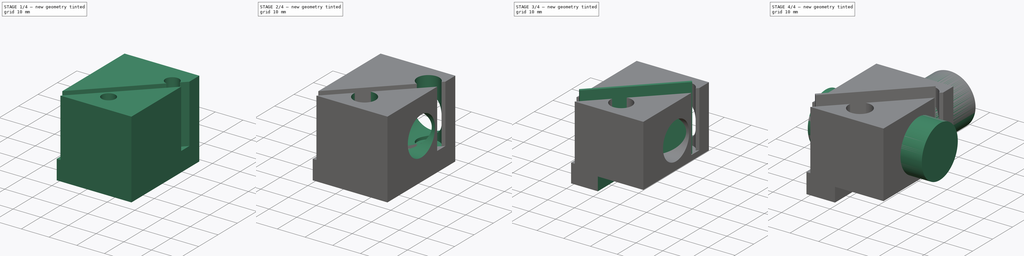
[diagram: build sequence overview — one tinted view per stage of 4, left to right]
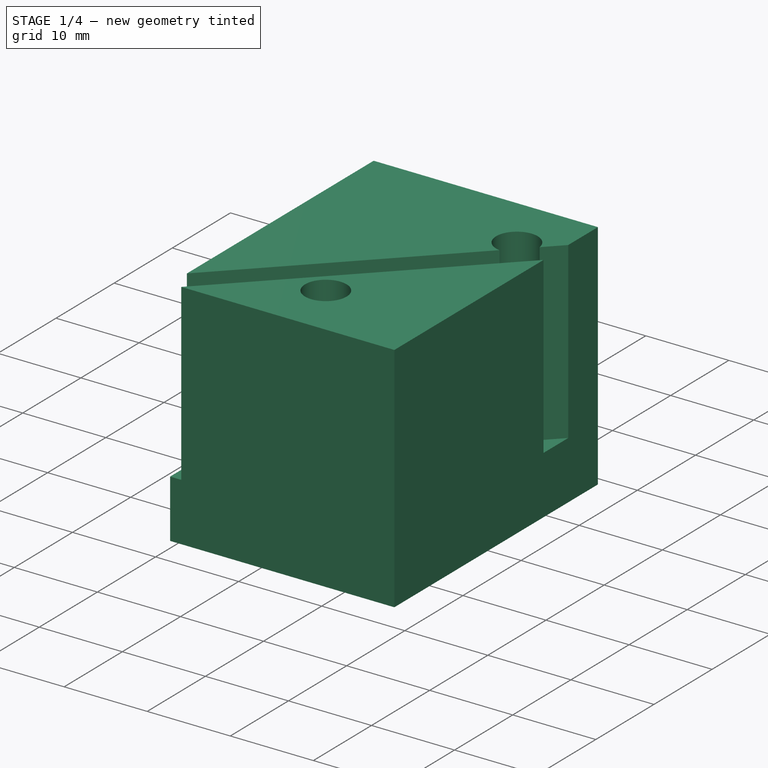
[diagram: stage 1 of 4 — iso view after this stage's code; geometry added in this stage tinted green]
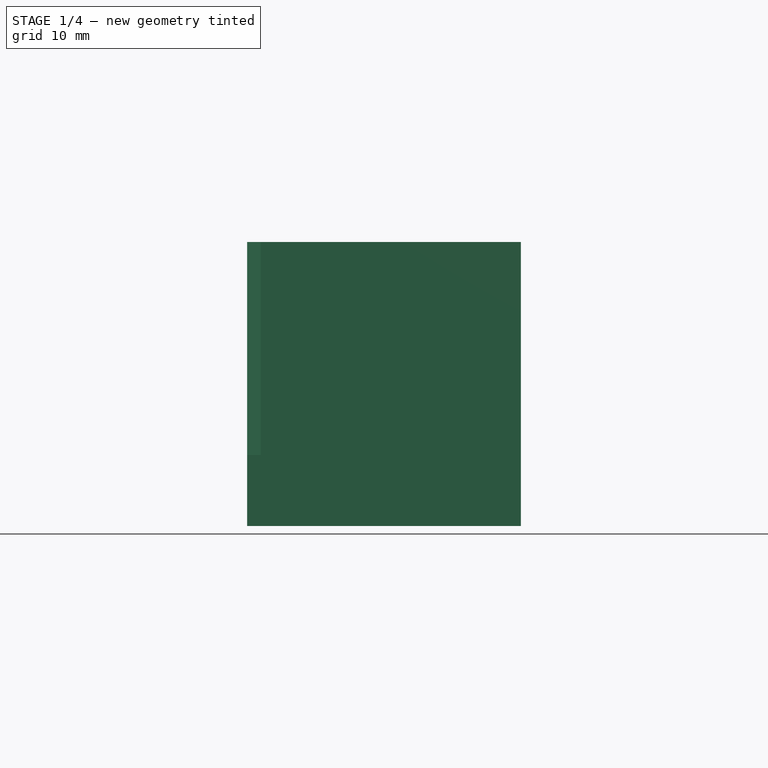
[diagram: stage 1 of 4 — front view after this stage's code; geometry added in this stage tinted green]
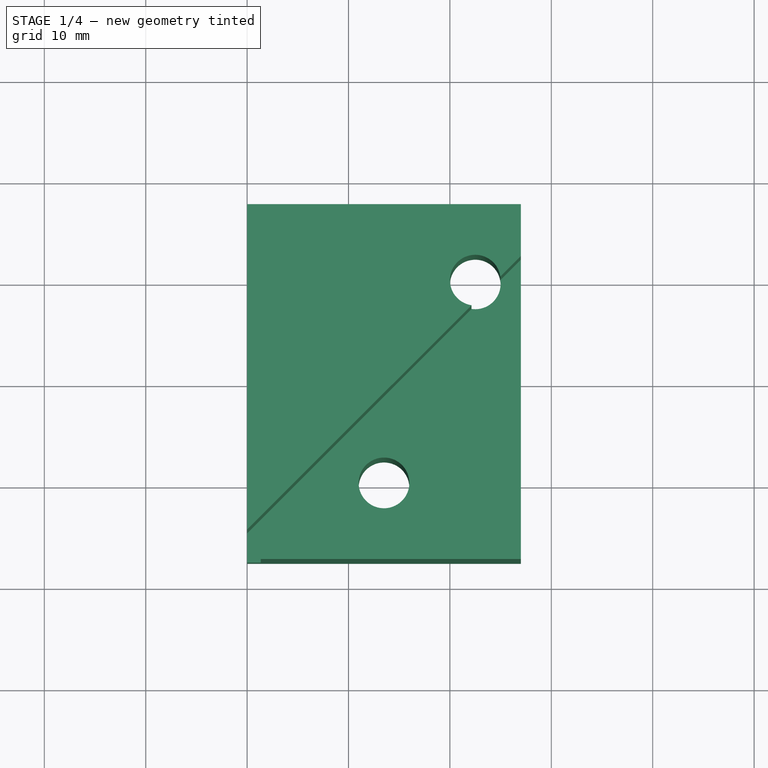
[diagram: stage 1 of 4 — top view after this stage's code; geometry added in this stage tinted green]
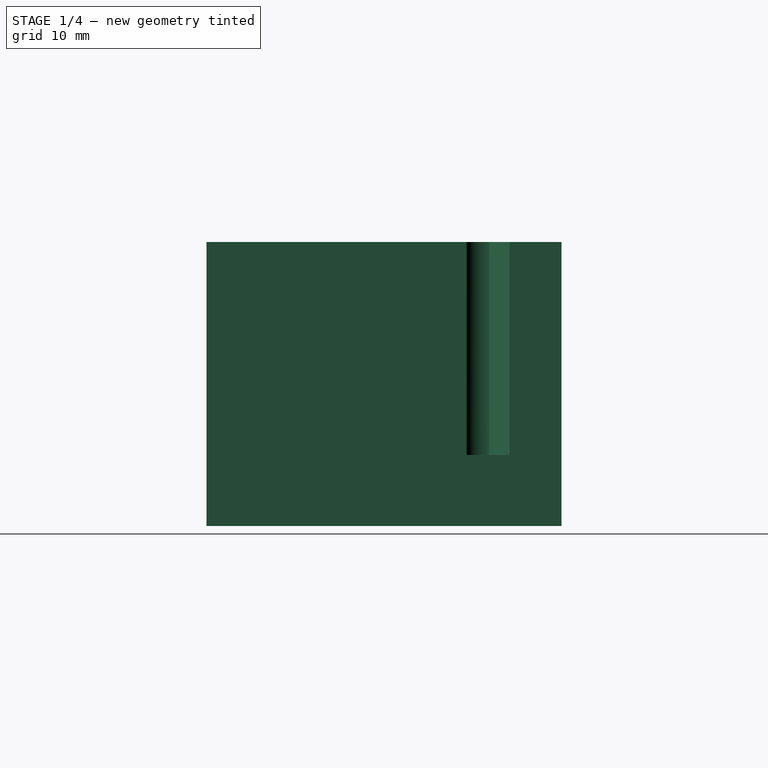
[diagram: stage 1 of 4 — right view after this stage's code; geometry added in this stage tinted green]
FCSTD DOCUMENT  (FreeCAD 0.17R13528 (Git))
Label: DM Holder For Miniscanner2
License: All rights reserved
LicenseURL: http://en.wikipedia.org/wiki/All_rights_reserved
objects: Drawing::FeatureViewPython×27, Sketcher::SketchObject×5, PartDesign::Pocket×4, Drawing::FeatureViewPart×4, Part::Box×2, PartDesign::ShapeBinder×2, Part::Cylinder×2, PartDesign::Pad×1, PartDesign::Body×1, Part::Cut×1, Drawing::FeaturePage×1
note: 23 computed .brp shape members not serialized (recipe doc carries the construction recipe); baked Part::Feature solids carry a one-line shape summary decoded from their .brp

FEATURE [Sketcher::SketchObject] Sketch
  MapMode = 5
  Support = -> [XY_Plane]
  sketch-geometry (6):
    g0: LineSegment StartX=-10 StartY=17.5 StartZ=0 EndX=17 EndY=17.5 EndZ=0
    g1: LineSegment StartX=17 StartY=17.5 StartZ=0 EndX=17 EndY=-17.5 EndZ=0
    g2: LineSegment StartX=17 StartY=-17.5 StartZ=0 EndX=-10 EndY=-17.5 EndZ=0
    g3: LineSegment StartX=-10 StartY=-17.5 StartZ=0 EndX=-10 EndY=17.5 EndZ=0
    g4: Circle CenterX=3.5 CenterY=-10 CenterZ=0 NormalX=0 NormalY=0 NormalZ=1 AngleXU=0 Radius=2.5
    g5: Circle CenterX=12.5 CenterY=10 CenterZ=0 NormalX=0 NormalY=0 NormalZ=1 AngleXU=0 Radius=2.5
  constraints (18):
    c: Coincident(g0,g1)
    c: Coincident(g1,g2)
    c: Coincident(g2,g3)
    c: Coincident(g3,g0)
    c: Horizontal(g0)
    c: Horizontal(g2)
    c: Vertical(g1)
    c: Vertical(g3)
    c: DistanceX(g0,g0) = 27
    c: DistanceY(g3,g3) = 35
    c: DistanceX(g2,g-1) = 10
    c: Symmetric(g0,g2,g-1)
    c: Radius(g4) = 2.5
    c: DistanceX(g-1,g4) = 3.5
    c: DistanceY(g2,g4) = 7.5
    c: Radius(g5) = 2.5
    c: DistanceY(g5,g0) = 7.5
    c: DistanceX(g5,g0) = 4.5
FEATURE [PartDesign::Pad] Pad
  Length = 28
  Length2 = 100
  Profile = -> Sketch
  Type = 0
FEATURE [PartDesign::ShapeBinder] CopyCut001
  Placement = pos=(0,0,28) rot=(0,0,1;0rad)
FEATURE [Sketcher::SketchObject] Sketch001
  ExternalGeometry = -> [CopyCut001]
  MapMode = 5
  Placement = pos=(0,0,28) rot=(0,0,1;0rad)
  Support = -> [CopyCut001]
  sketch-geometry (5):
    g0: LineSegment StartX=17 StartY=12.3926 StartZ=0 EndX=-10 EndY=-14.6074 EndZ=0
    g1: LineSegment StartX=17 StartY=8.15 StartZ=0 EndX=-10 EndY=-18.85 EndZ=0
    g2: LineSegment [constr] StartX=17 StartY=8.15 StartZ=0 EndX=14.8787 EndY=10.2713 EndZ=0
    g3: LineSegment StartX=-10 StartY=-14.6074 StartZ=0 EndX=-10 EndY=-18.85 EndZ=0
    g4: LineSegment StartX=17 StartY=12.3926 StartZ=0 EndX=17 EndY=8.15 EndZ=0
  constraints (16):
    c: PointOnObject(g0,g-3)
    c: Angle(g0,g-3) = 0.785398
    c: PointOnObject(g1,g-3)
    c: Parallel(g0,g1)
    c: Coincident(g2,g1)
    c: PointOnObject(g2,g0)
    c: Perpendicular(g0,g2)
    c: Distance(g2) = 3
    c: PointOnObject(g0,g-4)
    c: PointOnObject(g1,g-4)
    c: Coincident(g3,g0)
    c: Vertical(g3)
    c: Coincident(g3,g1)
    c: Coincident(g4,g0)
    c: Coincident(g4,g1)
    c: DistanceY(g1,g-3) = 9.35
FEATURE [PartDesign::Pocket] Pocket
  BaseFeature = -> Pad
  Length = 21
  Length2 = 100
  Profile = -> Sketch001
  Type = 0
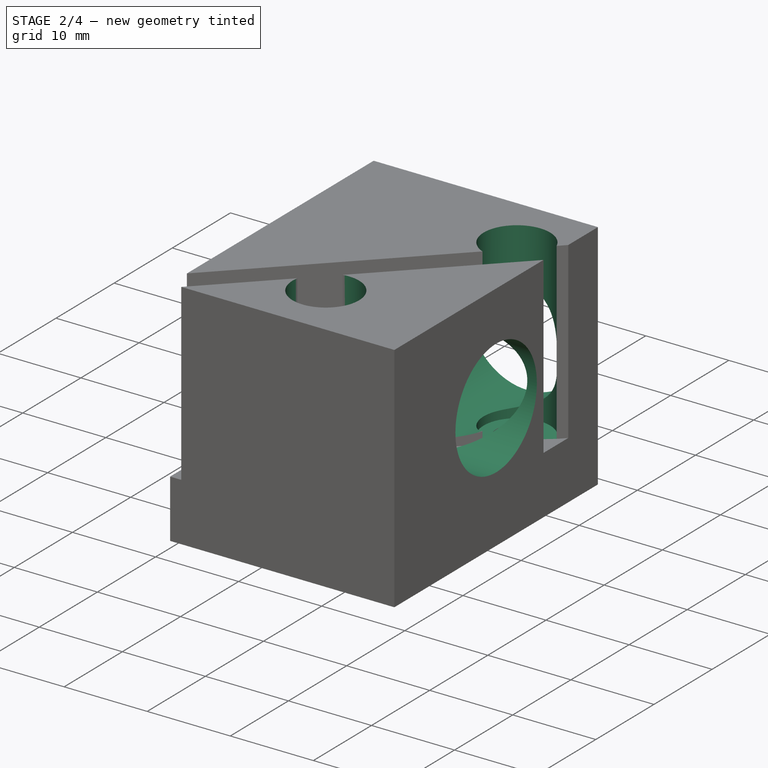
[diagram: stage 2 of 4 — iso view after this stage's code; geometry added in this stage tinted green]
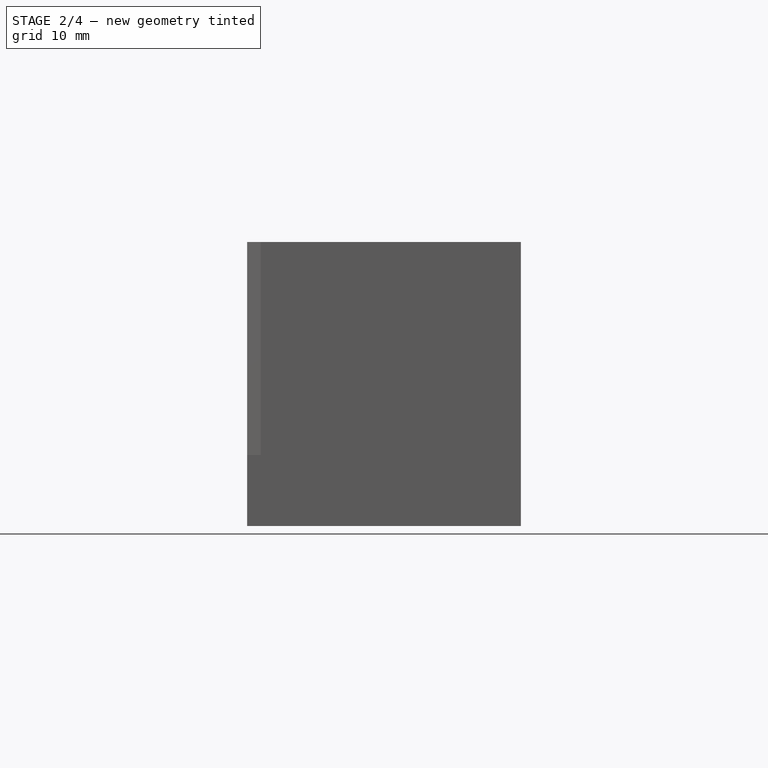
[diagram: stage 2 of 4 — front view after this stage's code; geometry added in this stage tinted green]
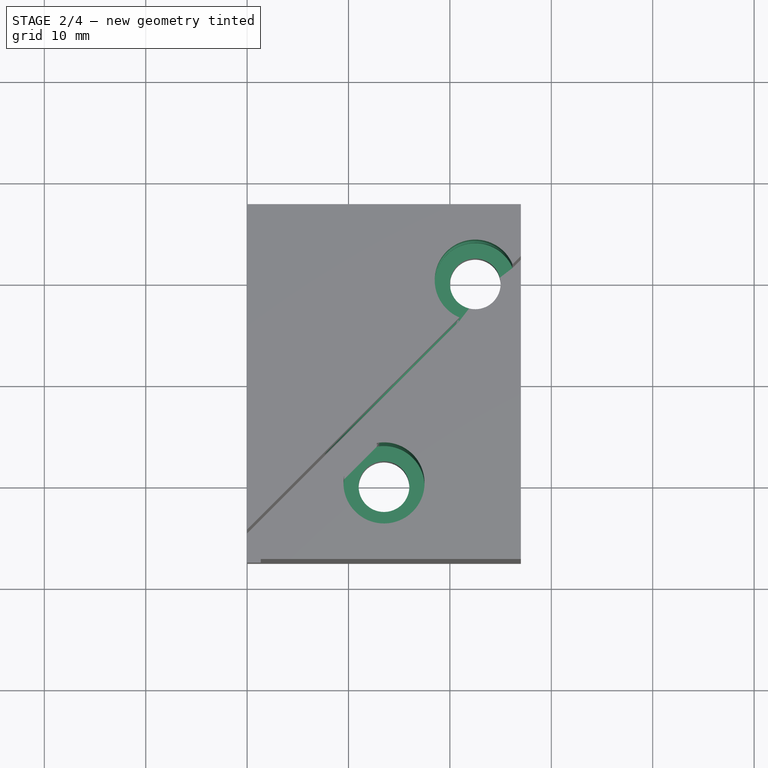
[diagram: stage 2 of 4 — top view after this stage's code; geometry added in this stage tinted green]
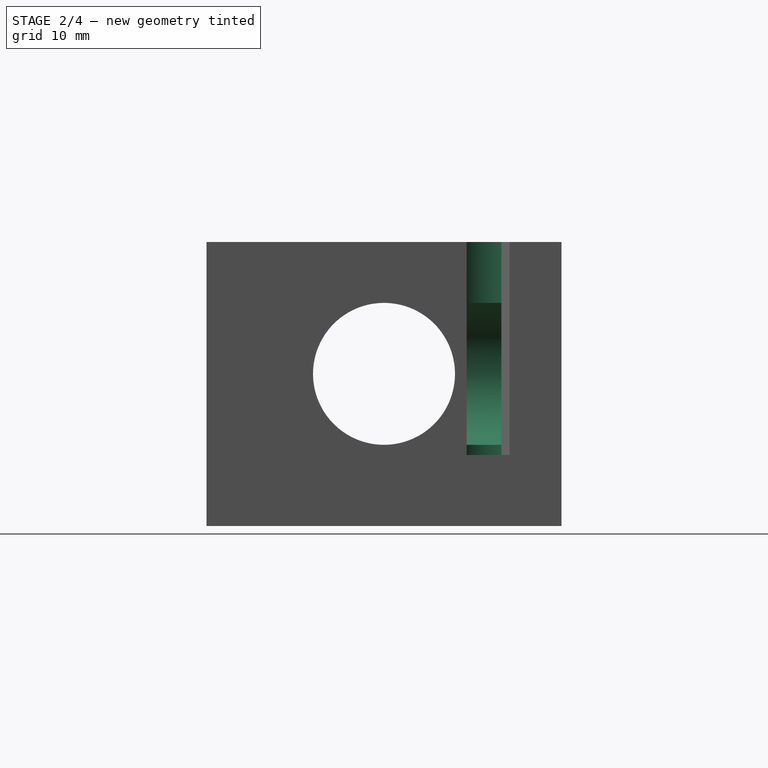
[diagram: stage 2 of 4 — right view after this stage's code; geometry added in this stage tinted green]
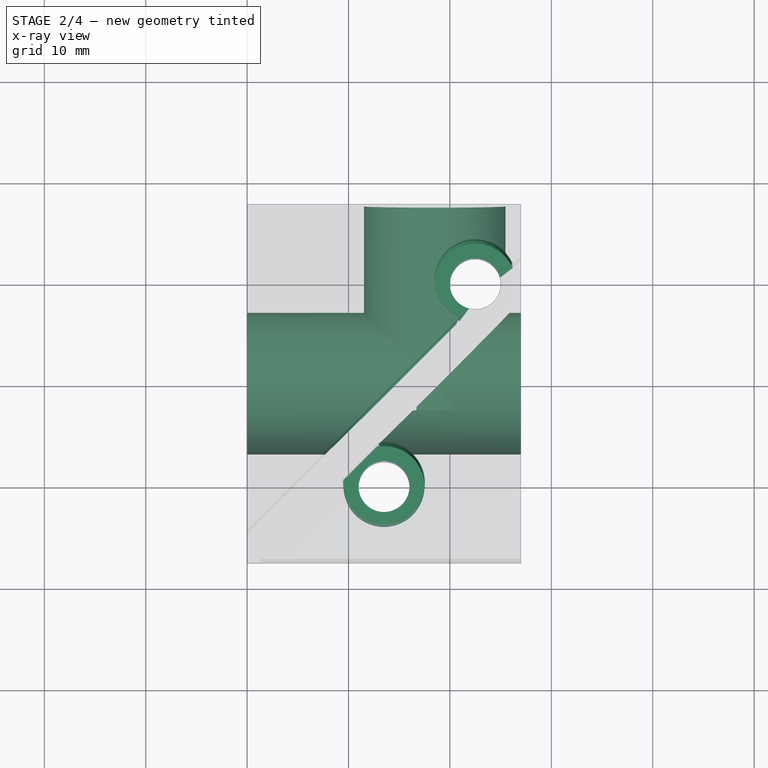
[diagram: stage 2 of 4 — x-ray composite at the top view; earlier geometry ghosted, this stage's added geometry solid]
FEATURE [Sketcher::SketchObject] Sketch002
  MapMode = 5
  Placement = pos=(0,17.5,0) rot=(0,0.707107,0.707107;3.14159rad)
  Support = -> [Pocket]
  sketch-geometry (1):
    g0: Circle CenterX=-8.5 CenterY=15 CenterZ=0 NormalX=0 NormalY=0 NormalZ=1 AngleXU=0 Radius=7
  constraints (3):
    c: DistanceY(g-1,g0) = 15
    c: Radius(g0) = 7
    c: DistanceX(g-1,g0) = -8.5
FEATURE [PartDesign::Pocket] Pocket001
  BaseFeature = -> Pocket
  Length = 20
  Length2 = 100
  Profile = -> Sketch002
  Type = 0
FEATURE [Sketcher::SketchObject] Sketch003
  MapMode = 5
  Placement = pos=(17,0,0) rot=(0.57735,0.57735,0.57735;2.0944rad)
  Support = -> [Pocket001]
  sketch-geometry (1):
    g0: Circle CenterX=0 CenterY=15 CenterZ=0 NormalX=0 NormalY=0 NormalZ=1 AngleXU=0 Radius=7
  constraints (3):
    c: PointOnObject(g0,g-2)
    c: Radius(g0) = 7
    c: DistanceY(g-1,g0) = 15
FEATURE [PartDesign::Pocket] Pocket002
  BaseFeature = -> Pocket001
  Length = 5
  Length2 = 100
  Profile = -> Sketch003
  Type = 1
FEATURE [PartDesign::ShapeBinder] ShapeBinder
FEATURE [Sketcher::SketchObject] Sketch004
  ExternalGeometry = -> [ShapeBinder]
  MapMode = 45
  Placement = pos=(8,1e-12,28) rot=(0,0,-1;0.422854rad)
  Support = -> [Sketch004]
  sketch-geometry (2):
    g0: Circle CenterX=0 CenterY=10.9659 CenterZ=0 NormalX=0 NormalY=0 NormalZ=1 AngleXU=0 Radius=4
    g1: Circle CenterX=0 CenterY=-10.9659 CenterZ=0 NormalX=0 NormalY=0 NormalZ=1 AngleXU=0 Radius=4
  constraints (4):
    c: Coincident(g0,g-3)
    c: Coincident(g1,g-4)
    c: Radius(g0) = 4
    c: Radius(g1) = 4
FEATURE [PartDesign::Pocket] Pocket003
  BaseFeature = -> Pocket002
  Length = 21
  Length2 = 100
  Profile = -> Sketch004
  Type = 0
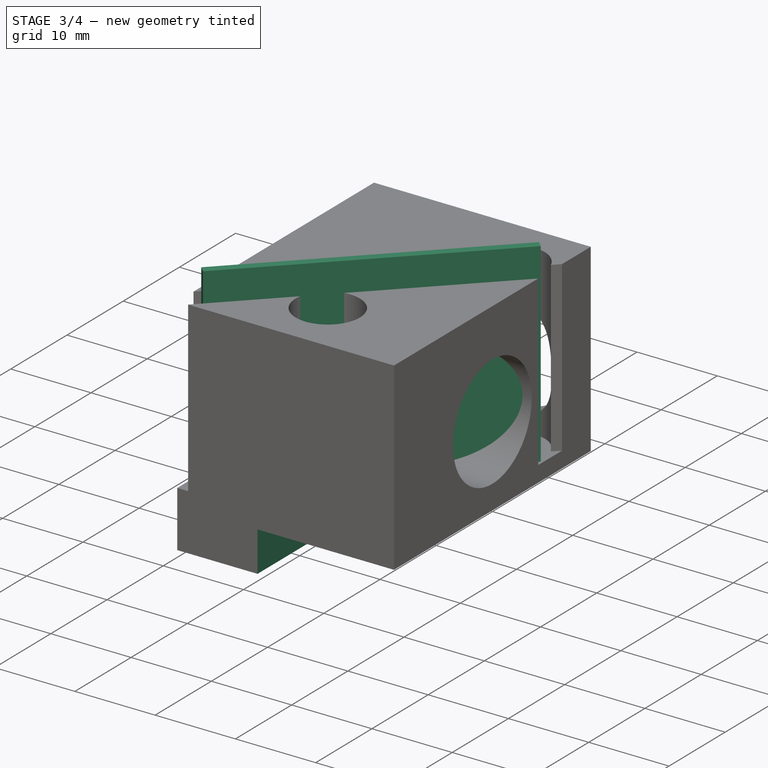
[diagram: stage 3 of 4 — iso view after this stage's code; geometry added in this stage tinted green]
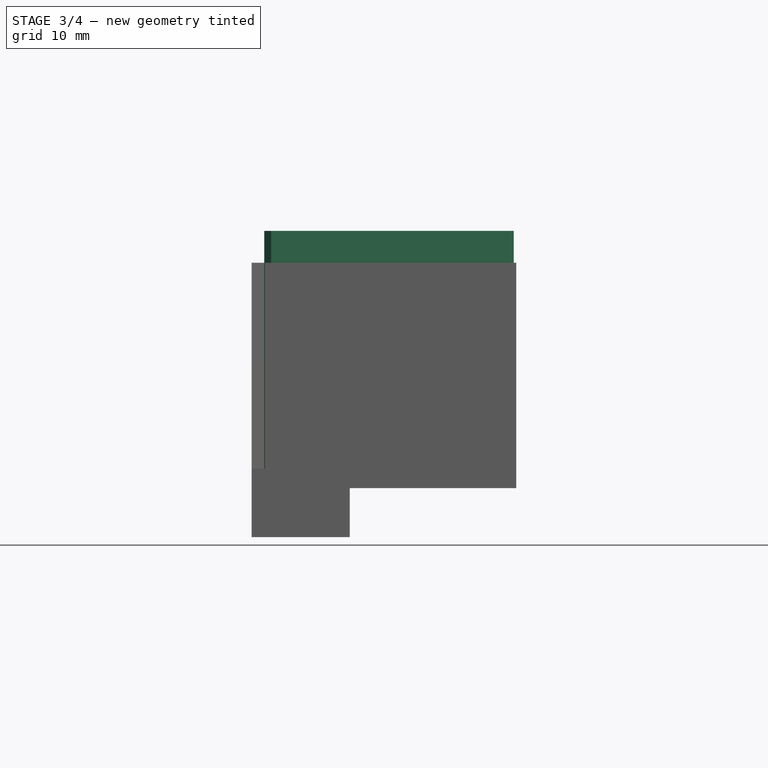
[diagram: stage 3 of 4 — front view after this stage's code; geometry added in this stage tinted green]
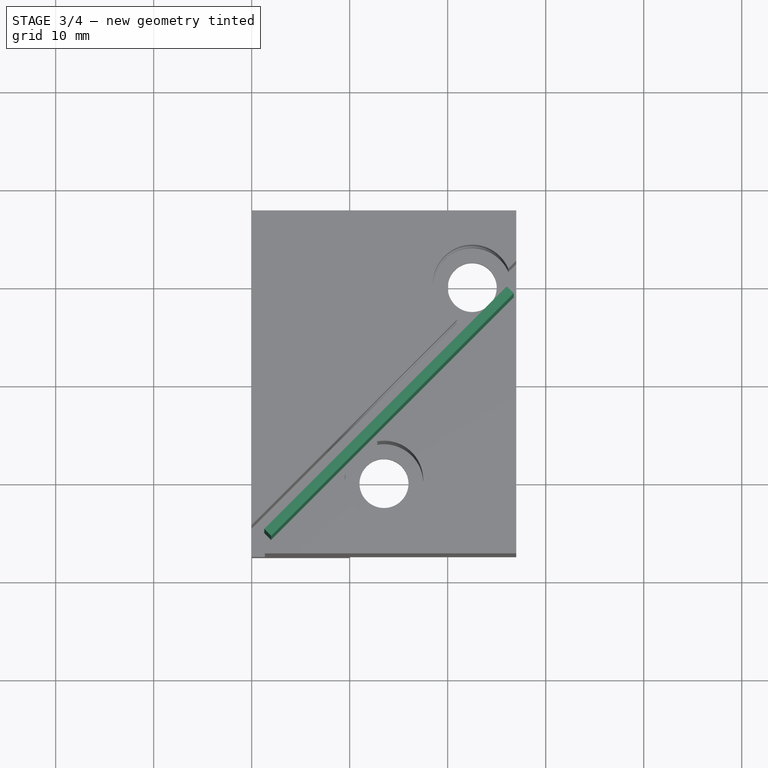
[diagram: stage 3 of 4 — top view after this stage's code; geometry added in this stage tinted green]
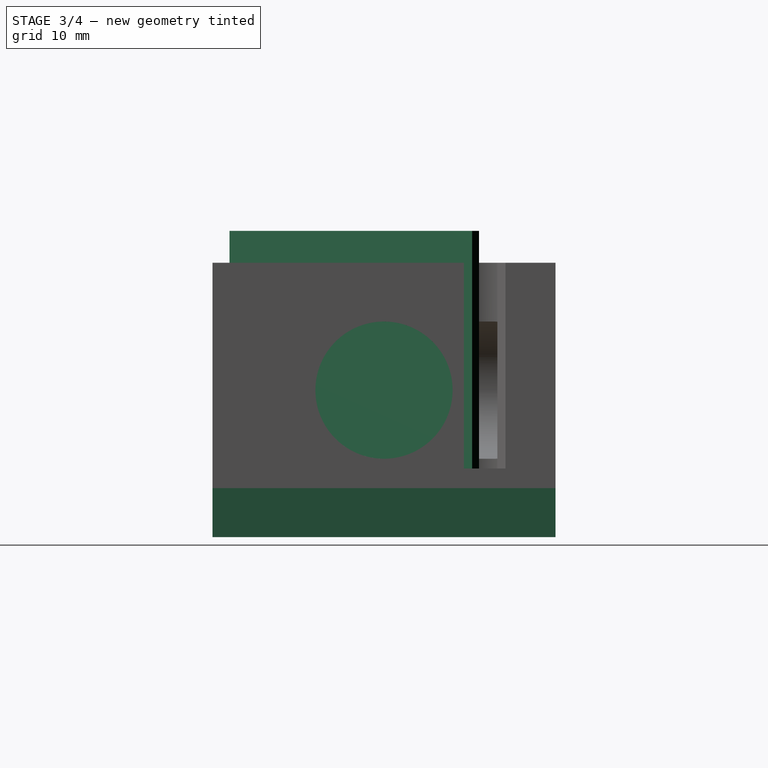
[diagram: stage 3 of 4 — right view after this stage's code; geometry added in this stage tinted green]
FEATURE [Part::Box] Box  label="base"
  AttacherType = Attacher::AttachEngine3D
  Height = 6
  Length = 17
  Placement = pos=(0,-17.5,-1) rot=(0,0,1;0rad)
  Width = 35
FEATURE [Part::Box] Box001  label="DM"
  AttacherType = Attacher::AttachEngine3D
  Height = 25
  Length = 35
  Placement = pos=(-8.01256,-15.7626,6.25) rot=(0,0,1;0.785398rad)
  Width = 1
FEATURE [PartDesign::Body] Body
  Group = -> [Sketch,Pad,CopyCut001,Sketch001,Pocket,Sketch002,Pocket001,Sketch003,Pocket002,ShapeBinder,Sketch004,Pocket003]
  Origin = -> Origin
  Tip = -> Pocket003
FEATURE [Part::Cut] Cut
  Base = -> Pocket003
  Tool = -> Box
FEATURE [Drawing::FeatureViewPart] Ortho  label="Ortho_0_0"
  Direction = (1,0,0)
  HiddenWidth = 0.15
  LineWidth = 0.35
  Rotation = -90
  Scale = 1.5
  ShowHiddenLines = false
  ShowSmoothLines = false
  Source = -> Cut
  Tolerance = 0.05
  ViewResult = <g id="Ortho_0_0"\n   transform="rotate(-90,97.5833,132.833) translate(97.5833,132.833) scale(1.5,1.5)"\n  >\n<g   fill="none"\n   stroke="rgb(0, 0, 0)"\n   stroke-linecap="butt"\n   stroke-linejoin="miter"\n   stroke-width="0.233333"\n   transform="scale(1,-1)"\n  >\n<path id= "1" d=" M 8 -9.99999 L 8 -10 " />\n<path id= "2" d=" M 8 -10 L 8 -10 " />\n</g>\n<g   fill="none"\n   stroke="rgb(0, 0, 0)"\n   stroke-linecap="butt"\n   stroke-linejoin="miter"\n   stroke-width="0.233333"\n   transform="scale(1,-1)"\n  >\n<path id= "1" d=" M 0 -17.5 L 5 -17.5 " />\n<path id= "2" d=" M 5 -17.5 L 28 -17.5 " />\n<path id= "3" d=" M 0 -17.5 L 0 17.5 " />\n<path id= "4" d=" M 0 17.5 L 5 17.5 " />\n<path id= "5" d=" M 5 17.5 L 5 -17.5 " />\n<path id= "6" d=" M 5 17.5 L 28 17.5 " />\n<path id= "7" d=" M 28 -8.15 L 28 17.5 " />\n<path id= "8" d=" M 28 -8.15 L 7 -8.15 " />\n<path id= "9" d=" M 7 -12.3926 L 7 -8.15 " />\n<path id= "10" d=" M 28 -12.3926 L 7 -12.3926 " />\n<path id= "11" d=" M 28 -17.5 L 28 -12.3926 " />\n<circle cx ="15" cy ="0" r ="7" /><path d="M28,-11.5712 C28,-10.4855 28,-9.19634 28,-8.15 " /><path id= "14" d=" M 28 -12.3926 L 28 -11.5712 " />\n<path d="M8.01471,-8.15 C7.996,-8.73797 8.00111,-9.3698 8,-9.99999 " /><path d="M8,-9.99999 L8,-10 " /><path d="M8,-10 L8,-10 " /><path d="M8,-10 C8.00055,-10.5318 7.99801,-11.0642 8.00739,-11.5712 " /><path d="M21.9926,-11.5712 C22.002,-11.0642 21.9994,-10.5318 22,-10 " /><path d="M22,-10 C21.9989,-9.36977 22.004,-8.73799 21.9853,-8.15 " /><path d="M7,-10 C7,-9.65274 7,-9.3065 7,-8.98851  C7,-8.67136 7,-8.38433 7,-8.15 " /><path d="M7,-11.5712 C7,-11.2257 7,-10.8051 7,-10.3657 " /><path id= "23" d=" M 7 -11.5712 L 28 -11.5712 " />\n<path d="M18.6056,6 C18.6062,5.99879 18.4437,6.10095 18.1827,6.23461  C17.9808,6.3378 17.7191,6.4585 17.4166,6.56965  C16.7563,6.81619 15.8939,7.00331 15.0013,7  C14.1077,7.00365 13.2443,6.81643 12.5834,6.56965  C12.2809,6.4585 12.0192,6.3378 11.8173,6.23461  C11.5563,6.10094 11.3939,5.99886 11.3944,6 " /></g>\n</g>
  Visible = true
  X = 97.5833
  Y = 132.833
FEATURE [Drawing::FeatureViewPart] Ortho001  label="Ortho_0_1"
  Direction = (0,0,1)
  HiddenWidth = 0.15
  LineWidth = 0.35
  Rotation = 90
  Scale = 1.5
  ShowHiddenLines = false
  ShowSmoothLines = false
  Source = -> Cut
  Tolerance = 0.05
  ViewResult = <blob: 2014 chars omitted>
  Visible = true
  X = 97.5833
  Y = 45.1667
FEATURE [Drawing::FeatureViewPart] Ortho002  label="Ortho_1_0"
  Direction = (0,1,0)
  HiddenWidth = 0.15
  LineWidth = 0.35
  Rotation = -90
  Scale = 1.5
  ShowHiddenLines = false
  ShowSmoothLines = false
  Source = -> Cut
  Tolerance = 0.05
  ViewResult = <g id="Ortho_1_0"\n   transform="rotate(-90,210.667,132.833) translate(210.667,132.833) scale(1.5,1.5)"\n  >\n<g   fill="none"\n   stroke="rgb(0, 0, 0)"\n   stroke-linecap="butt"\n   stroke-linejoin="miter"\n   stroke-width="0.233333"\n   transform="scale(1,-1)"\n  >\n<path id= "1" d=" M 0 -10 L 0 0 " />\n<path id= "2" d=" M 0 0 L 5 0 " />\n<path id= "3" d=" M 5 0 L 5 17 " />\n<path id= "4" d=" M 5 17 L 28 17 " />\n<path id= "5" d=" M 28 -10 L 28 17 " />\n<path id= "6" d=" M 0 -10 L 28 -10 " />\n<circle cx ="15" cy ="8.5" r ="7" /><path id= "8" d=" M 18.4963 2.78571 L 19.0431 2.78571 " />\n<path d="M18.4963,2.78571 L18.7877,2.96332  L19.0701,3.15492  L19.3429,3.36005  L19.6053,3.57824  L19.8567,3.80895  L20.0966,4.05165  L20.3244,4.30575  L20.5396,4.57065  L20.7416,4.84572  L20.9299,5.13031  L21.1042,5.42374  L21.2639,5.72531  L21.4087,6.03431  L21.5383,6.35 " /><path id= "10" d=" M 21.6616 6.35 L 21.5383 6.35 " />\n<path id= "11" d=" M 8.46165 6.35 L 8.33836 6.35 " />\n<path d="M8.46165,6.35 L8.59127,6.03431  L8.73611,5.72531  L8.89584,5.42374  L9.07009,5.13031  L9.25842,4.84572  L9.4604,4.57065  L9.67555,4.30575  L9.90335,4.05165  L10.1433,3.80895  L10.3947,3.57824  L10.6571,3.36005  L10.9299,3.15492  L11.2123,2.96332  L11.5037,2.78571 " /><path id= "13" d=" M 10.9569 2.78571 L 11.5037 2.78571 " />\n<path id= "14" d=" M 8.46165 6.35 L 8.46165 11 " />\n<path d="M18.4963,2.78571 C18.5682,3.01233 18.6046,3.25043 18.6056,3.5  C18.6062,4.00718 18.4437,4.48079 18.1827,4.84976  C18.1041,4.96135 18.0171,5.06509 17.9216,5.161  C17.2345,5.84975 16.1446,6.14055 15.0013,6.14575  C13.857,6.141 12.7659,5.85025 12.0784,5.161  C11.9829,5.06509 11.8959,4.96135 11.8173,4.84976  C11.5649,4.49243 11.4045,4.03899 11.395,3.5494  C11.3906,3.28259 11.4269,3.02803 11.5037,2.78571 " /><path id= "16" d=" M 21.5383 6.35 L 21.5383 11 " />\n</g>\n</g>
  Visible = true
  X = 210.667
  Y = 132.833
FEATURE [Drawing::FeatureViewPart] Ortho003  label="Ortho_1_1"
  Direction = (0.57735,0.57735,0.57735)
  HiddenWidth = 0.15
  LineWidth = 0.35
  Rotation = 120
  Scale = 1.5
  ShowHiddenLines = false
  ShowSmoothLines = false
  Source = -> Cut
  Tolerance = 0.05
  ViewResult = <blob: 3505 chars omitted>
  Visible = true
  X = 209.129
  Y = 65.4198
FEATURE [Drawing::FeatureViewPython] dim001  # drawing view (typed FeaturePython)
  Rotation = 0
  ViewResult = <g> \n  <line x1="125.833300" y1="30.166700" x2="151.496094" y2="30.166700" style="stroke:rgb(0,0,255);stroke-width:0.50" />\n<line x1="125.833300" y1="70.666700" x2="151.496094" y2="70.666700" style="stroke:rgb(0,0,255);stroke-width:0.50" />\n<line x1="150.496094" y1="30.166700" x2="150.496094" y2="70.666700" style="stroke:rgb(0,0,255);stroke-width:0.50" /> \n  <polygon points="150.496094,70.666700 151.496094,67.666700 150.496094,66.666700 149.496094,67.666700" style="fill:rgb(0,0,255);stroke:rgb(0,0,255);stroke-width:0" /><polygon points="150.496094,30.166700 149.496094,33.166700 150.496094,34.166700 151.496094,33.166700" style="fill:rgb(0,0,255);stroke:rgb(0,0,255);stroke-width:0" /> \n  <text x="148.496094" y="50.416700" font-family="inherit" font-size="3.6" fill="rgb(0,0,255)" text-anchor="middle" transform="rotate(-90.000000 148.496094,50.416700)" >27</text> </g>
  Visible = true
  X = 0
  Y = 0
  arrowL1 = 3
  arrowL2 = 1
  arrowW = 2
  arrow_scheme = 0
  autoPlaceOffset = 2
  autoPlaceText = true
  click1_x = 150.496
  click1_y = 72.0009
  click2_x = 150.496
  click2_y = 72.0009
  comma_decimal_place = false
  dimension_line_overshoot = 1
  gap_datum_points = 2
  halfDimension_linear = false
  lineColor = rgb(0,0,255)
  strokeWidth = 0.5
  textFormat_linear = %(value)3.3f
  textRenderer_color = rgb(0,0,255)
  textRenderer_family = inherit
  textRenderer_size = 3.6
  unit_custom_scale = 1
  unit_scheme = 0
FEATURE [Drawing::FeatureViewPython] dim002  # drawing view (typed FeaturePython)
  Rotation = 0
  ViewResult = <g> \n  <line x1="125.833300" y1="90.833000" x2="151.496094" y2="90.833000" style="stroke:rgb(0,0,255);stroke-width:0.50" />\n<line x1="125.833300" y1="125.333000" x2="151.496094" y2="125.333000" style="stroke:rgb(0,0,255);stroke-width:0.50" />\n<line x1="150.496094" y1="90.833000" x2="150.496094" y2="125.333000" style="stroke:rgb(0,0,255);stroke-width:0.50" /> \n  <polygon points="150.496094,125.333000 151.496094,122.333000 150.496094,121.333000 149.496094,122.333000" style="fill:rgb(0,0,255);stroke:rgb(0,0,255);stroke-width:0" /><polygon points="150.496094,90.833000 149.496094,93.833000 150.496094,94.833000 151.496094,93.833000" style="fill:rgb(0,0,255);stroke:rgb(0,0,255);stroke-width:0" /> \n  <text x="148.496094" y="108.083000" font-family="inherit" font-size="3.6" fill="rgb(0,0,255)" text-anchor="middle" transform="rotate(-90.000000 148.496094,108.083000)" >23</text> </g>
  Visible = true
  X = 0
  Y = 0
  arrowL1 = 3
  arrowL2 = 1
  arrowW = 2
  arrow_scheme = 0
  autoPlaceOffset = 2
  autoPlaceText = true
  click1_x = 150.496
  click1_y = 123.955
  click2_x = 150.496
  click2_y = 123.955
  comma_decimal_place = false
  dimension_line_overshoot = 1
  gap_datum_points = 2
  halfDimension_linear = false
  lineColor = rgb(0,0,255)
  strokeWidth = 0.5
  textFormat_linear = %(value)3.3f
  textRenderer_color = rgb(0,0,255)
  textRenderer_family = inherit
  textRenderer_size = 3.6
  unit_custom_scale = 1
  unit_scheme = 0
FEATURE [Drawing::FeatureViewPython] dim003  # drawing view (typed FeaturePython)
  Rotation = 0
  ViewResult = <g> \n  <line x1="125.833300" y1="125.333000" x2="151.496094" y2="125.333000" style="stroke:rgb(0,0,255);stroke-width:0.50" />\n<line x1="125.833300" y1="132.833000" x2="151.496094" y2="132.833000" style="stroke:rgb(0,0,255);stroke-width:0.50" />\n<line x1="150.496094" y1="125.333000" x2="150.496094" y2="132.833000" style="stroke:rgb(0,0,255);stroke-width:0.50" /> \n  <polygon points="150.496094,132.833000 149.496094,135.833000 150.496094,136.833000 151.496094,135.833000" style="fill:rgb(0,0,255);stroke:rgb(0,0,255);stroke-width:0" /><polygon points="150.496094,125.333000 151.496094,122.333000 150.496094,121.333000 149.496094,122.333000" style="fill:rgb(0,0,255);stroke:rgb(0,0,255);stroke-width:0" /> \n  <text x="148.496094" y="129.083000" font-family="inherit" font-size="3.6" fill="rgb(0,0,255)" text-anchor="middle" transform="rotate(-90.000000 148.496094,129.083000)" >5</text> </g>
  Visible = true
  X = 0
  Y = 0
  arrowL1 = 3
  arrowL2 = 1
  arrowW = 2
  arrow_scheme = 0
  autoPlaceOffset = 2
  autoPlaceText = true
  click1_x = 150.496
  click1_y = 132.425
  click2_x = 150.496
  click2_y = 132.425
  comma_decimal_place = false
  dimension_line_overshoot = 1
  gap_datum_points = 2
  halfDimension_linear = false
  lineColor = rgb(0,0,255)
  strokeWidth = 0.5
  textFormat_linear = %(value)3.3f
  textRenderer_color = rgb(0,0,255)
  textRenderer_family = inherit
  textRenderer_size = 3.6
  unit_custom_scale = 1
  unit_scheme = 0
FEATURE [Drawing::FeatureViewPython] dim004  # drawing view (typed FeaturePython)
  Rotation = 0
  ViewResult = <g> \n  <line x1="71.333300" y1="134.833000" x2="71.333300" y2="144.719534" style="stroke:rgb(0,0,255);stroke-width:0.50" />\n<line x1="123.833300" y1="134.833000" x2="123.833300" y2="144.719534" style="stroke:rgb(0,0,255);stroke-width:0.50" />\n<line x1="71.333300" y1="143.719534" x2="123.833300" y2="143.719534" style="stroke:rgb(0,0,255);stroke-width:0.50" /> \n  <polygon points="123.833300,143.719534 120.833300,142.719534 119.833300,143.719534 120.833300,144.719534" style="fill:rgb(0,0,255);stroke:rgb(0,0,255);stroke-width:0" /><polygon points="71.333300,143.719534 74.333300,144.719534 75.333300,143.719534 74.333300,142.719534" style="fill:rgb(0,0,255);stroke:rgb(0,0,255);stroke-width:0" /> \n  <text x="97.583300" y="141.719534" font-family="inherit" font-size="3.6" fill="rgb(0,0,255)" text-anchor="middle" transform="rotate(0.000000 97.583300,141.719534)" >35</text> </g>
  Visible = true
  X = 0
  Y = 0
  arrowL1 = 3
  arrowL2 = 1
  arrowW = 2
  arrow_scheme = 0
  autoPlaceOffset = 2
  autoPlaceText = true
  click1_x = 124.519
  click1_y = 143.72
  click2_x = 124.519
  click2_y = 143.72
  comma_decimal_place = false
  dimension_line_overshoot = 1
  gap_datum_points = 2
  halfDimension_linear = false
  lineColor = rgb(0,0,255)
  strokeWidth = 0.5
  textFormat_linear = %(value)3.3f
  textRenderer_color = rgb(0,0,255)
  textRenderer_family = inherit
  textRenderer_size = 3.6
  unit_custom_scale = 1
  unit_scheme = 0
FEATURE [Drawing::FeatureViewPython] dim005  # drawing view (typed FeaturePython)
  Rotation = 0
  ViewResult = <g> \n  <line x1="82.583305" y1="52.416702" x2="82.583305" y2="80.342218" style="stroke:rgb(0,0,255);stroke-width:0.50" />\n<line x1="71.333300" y1="72.666700" x2="71.333300" y2="80.342218" style="stroke:rgb(0,0,255);stroke-width:0.50" />\n<line x1="82.583305" y1="79.342218" x2="71.333300" y2="79.342218" style="stroke:rgb(0,0,255);stroke-width:0.50" /> \n  <polygon points="71.333300,79.342218 74.333300,80.342218 75.333300,79.342218 74.333300,78.342218" style="fill:rgb(0,0,255);stroke:rgb(0,0,255);stroke-width:0" /><polygon points="82.583305,79.342218 79.583305,78.342218 78.583305,79.342218 79.583305,80.342218" style="fill:rgb(0,0,255);stroke:rgb(0,0,255);stroke-width:0" /> \n  <text x="76.958302" y="77.342218" font-family="inherit" font-size="3.6" fill="rgb(0,0,255)" text-anchor="middle" transform="rotate(0.000000 76.958302,77.342218)" >7.5</text> </g>
  Visible = true
  X = 0
  Y = 0
  arrowL1 = 3
  arrowL2 = 1
  arrowW = 2
  arrow_scheme = 0
  autoPlaceOffset = 2
  autoPlaceText = true
  click1_x = 80.754
  click1_y = 79.3422
  click2_x = 80.754
  click2_y = 79.3422
  comma_decimal_place = false
  dimension_line_overshoot = 1
  gap_datum_points = 2
  halfDimension_linear = false
  lineColor = rgb(0,0,255)
  strokeWidth = 0.5
  textFormat_linear = %(value)3.3f
  textRenderer_color = rgb(0,0,255)
  textRenderer_family = inherit
  textRenderer_size = 3.6
  unit_custom_scale = 1
  unit_scheme = 0
FEATURE [Drawing::FeatureViewPython] dim006  # drawing view (typed FeaturePython)
  Rotation = 0
  ViewResult = <g> \n  <line x1="112.583282" y1="65.916714" x2="112.583282" y2="80.624575" style="stroke:rgb(0,0,255);stroke-width:0.50" />\n<line x1="123.833300" y1="72.666700" x2="123.833300" y2="80.624575" style="stroke:rgb(0,0,255);stroke-width:0.50" />\n<line x1="112.583282" y1="79.624575" x2="123.833300" y2="79.624575" style="stroke:rgb(0,0,255);stroke-width:0.50" /> \n  <polygon points="123.833300,79.624575 120.833300,78.624575 119.833300,79.624575 120.833300,80.624575" style="fill:rgb(0,0,255);stroke:rgb(0,0,255);stroke-width:0" /><polygon points="112.583282,79.624575 115.583282,80.624575 116.583282,79.624575 115.583282,78.624575" style="fill:rgb(0,0,255);stroke:rgb(0,0,255);stroke-width:0" /> \n  <text x="118.208291" y="77.624575" font-family="inherit" font-size="3.6" fill="rgb(0,0,255)" text-anchor="middle" transform="rotate(0.000000 118.208291,77.624575)" >7.5</text> </g>
  Visible = true
  X = 0
  Y = 0
  arrowL1 = 3
  arrowL2 = 1
  arrowW = 2
  arrow_scheme = 0
  autoPlaceOffset = 2
  autoPlaceText = true
  click1_x = 122.825
  click1_y = 79.6246
  click2_x = 122.825
  click2_y = 79.6246
  comma_decimal_place = false
  dimension_line_overshoot = 1
  gap_datum_points = 2
  halfDimension_linear = false
  lineColor = rgb(0,0,255)
  strokeWidth = 0.5
  textFormat_linear = %(value)3.3f
  textRenderer_color = rgb(0,0,255)
  textRenderer_family = inherit
  textRenderer_size = 3.6
  unit_custom_scale = 1
  unit_scheme = 0
FEATURE [Drawing::FeatureViewPython] dim007  # drawing view (typed FeaturePython)
  Rotation = 0
  ViewResult = <g> \n  <line x1="82.583305" y1="52.416702" x2="82.583305" y2="80.342218" style="stroke:rgb(0,0,255);stroke-width:0.50" />\n<line x1="112.583282" y1="65.916714" x2="112.583282" y2="80.342218" style="stroke:rgb(0,0,255);stroke-width:0.50" />\n<line x1="82.583305" y1="79.342218" x2="112.583282" y2="79.342218" style="stroke:rgb(0,0,255);stroke-width:0.50" /> \n  <polygon points="112.583282,79.342218 109.583282,78.342218 108.583282,79.342218 109.583282,80.342218" style="fill:rgb(0,0,255);stroke:rgb(0,0,255);stroke-width:0" /><polygon points="82.583305,79.342218 85.583305,80.342218 86.583305,79.342218 85.583305,78.342218" style="fill:rgb(0,0,255);stroke:rgb(0,0,255);stroke-width:0" /> \n  <text x="97.583294" y="77.342218" font-family="inherit" font-size="3.6" fill="rgb(0,0,255)" text-anchor="middle" transform="rotate(0.000000 97.583294,77.342218)" >20</text> </g>
  Visible = true
  X = 0
  Y = 0
  arrowL1 = 3
  arrowL2 = 1
  arrowW = 2
  arrow_scheme = 0
  autoPlaceOffset = 2
  autoPlaceText = true
  click1_x = 111.249
  click1_y = 79.3422
  click2_x = 111.249
  click2_y = 79.3422
  comma_decimal_place = false
  dimension_line_overshoot = 1
  gap_datum_points = 2
  halfDimension_linear = false
  lineColor = rgb(0,0,255)
  strokeWidth = 0.5
  textFormat_linear = %(value)3.3f
  textRenderer_color = rgb(0,0,255)
  textRenderer_family = inherit
  textRenderer_size = 3.6
  unit_custom_scale = 1
  unit_scheme = 0
FEATURE [Drawing::FeatureViewPython] dim008  # drawing view (typed FeaturePython)
  Rotation = 0
  ViewResult = <g> \n  <line x1="114.583282" y1="63.916714" x2="136.531191" y2="63.916714" style="stroke:rgb(0,0,255);stroke-width:0.50" />\n<line x1="84.583305" y1="50.416702" x2="136.531191" y2="50.416702" style="stroke:rgb(0,0,255);stroke-width:0.50" />\n<line x1="135.531191" y1="63.916714" x2="135.531191" y2="50.416702" style="stroke:rgb(0,0,255);stroke-width:0.50" /> \n  <polygon points="135.531191,50.416702 134.531191,53.416702 135.531191,54.416702 136.531191,53.416702" style="fill:rgb(0,0,255);stroke:rgb(0,0,255);stroke-width:0" /><polygon points="135.531191,63.916714 136.531191,60.916714 135.531191,59.916714 134.531191,60.916714" style="fill:rgb(0,0,255);stroke:rgb(0,0,255);stroke-width:0" /> \n  <text x="133.531191" y="57.166708" font-family="inherit" font-size="3.6" fill="rgb(0,0,255)" text-anchor="middle" transform="rotate(-90.000000 133.531191,57.166708)" >9</text> </g>
  Visible = true
  X = 0
  Y = 0
  arrowL1 = 3
  arrowL2 = 1
  arrowW = 2
  arrow_scheme = 0
  autoPlaceOffset = 2
  autoPlaceText = true
  click1_x = 135.531
  click1_y = 52.5183
  click2_x = 135.531
  click2_y = 52.5183
  comma_decimal_place = false
  dimension_line_overshoot = 1
  gap_datum_points = 2
  halfDimension_linear = false
  lineColor = rgb(0,0,255)
  strokeWidth = 0.5
  textFormat_linear = %(value)3.3f
  textRenderer_color = rgb(0,0,255)
  textRenderer_family = inherit
  textRenderer_size = 3.6
  unit_custom_scale = 1
  unit_scheme = 0
FEATURE [Drawing::FeatureViewPython] dim009  # drawing view (typed FeaturePython)
  Rotation = 0
  ViewResult = <g> \n  <line x1="114.583282" y1="63.916714" x2="136.531191" y2="63.916714" style="stroke:rgb(0,0,255);stroke-width:0.50" />\n<line x1="125.833300" y1="70.666700" x2="136.531191" y2="70.666700" style="stroke:rgb(0,0,255);stroke-width:0.50" />\n<line x1="135.531191" y1="63.916714" x2="135.531191" y2="70.666700" style="stroke:rgb(0,0,255);stroke-width:0.50" /> \n  <polygon points="135.531191,70.666700 134.531191,73.666700 135.531191,74.666700 136.531191,73.666700" style="fill:rgb(0,0,255);stroke:rgb(0,0,255);stroke-width:0" /><polygon points="135.531191,63.916714 136.531191,60.916714 135.531191,59.916714 134.531191,60.916714" style="fill:rgb(0,0,255);stroke:rgb(0,0,255);stroke-width:0" /> \n  <text x="133.531191" y="67.291707" font-family="inherit" font-size="3.6" fill="rgb(0,0,255)" text-anchor="middle" transform="rotate(-90.000000 133.531191,67.291707)" >4.5</text> </g>
  Visible = true
  X = 0
  Y = 0
  arrowL1 = 3
  arrowL2 = 1
  arrowW = 2
  arrow_scheme = 0
  autoPlaceOffset = 2
  autoPlaceText = true
  click1_x = 135.531
  click1_y = 70.3068
  click2_x = 135.531
  click2_y = 70.3068
  comma_decimal_place = false
  dimension_line_overshoot = 1
  gap_datum_points = 2
  halfDimension_linear = false
  lineColor = rgb(0,0,255)
  strokeWidth = 0.5
  textFormat_linear = %(value)3.3f
  textRenderer_color = rgb(0,0,255)
  textRenderer_family = inherit
  textRenderer_size = 3.6
  unit_custom_scale = 1
  unit_scheme = 0
FEATURE [Drawing::FeatureViewPython] dim010  # drawing view (typed FeaturePython)
  Rotation = 0
  ViewResult = <g> <line x1="69.919087" y1="30.777486" x2="63.052510" y2="23.910906" style="stroke:rgb(0,0,255);stroke-width:0.50" />\n<line x1="74.257999" y1="28.752474" x2="66.234542" y2="20.728875" style="stroke:rgb(0,0,255);stroke-width:0.50" />\n<line x1="63.759617" y1="24.618013" x2="66.941643" y2="21.435988" style="stroke:rgb(0,0,255);stroke-width:0.50" />\n<polygon points="63.759617,24.618013 60.931189,26.032226 60.931189,27.446439 62.345402,27.446440" style="fill:rgb(0,0,255);stroke:rgb(0,0,255);stroke-width:0" />\n<polygon points="66.941643,21.435988 69.770070,20.021775 69.770071,18.607562 68.355857,18.607561" style="fill:rgb(0,0,255);stroke:rgb(0,0,255);stroke-width:0" />\n<text x="63.936416" y="21.612787" font-family="inherit" font-size="3.6" fill="rgb(0,0,255)" text-anchor="middle" transform="rotate(-44.999986 63.936416,21.612787)" >3</text> </g> 
  Visible = true
  X = 0
  Y = 0
  arrowL1 = 3
  arrowL2 = 1
  arrowW = 2
  arrow_scheme = 0
  autoPlaceOffset = 2
  autoPlaceText = true
  click1_x = 67.2009
  click1_y = 21.1767
  click2_x = 67.2009
  click2_y = 21.1767
  comma_decimal_place = false
  dimension_line_overshoot = 1
  gap_datum_points = 2
  halfDimension_linear = false
  lineColor = rgb(0,0,255)
  strokeWidth = 0.5
  textFormat_linear = %(value)3.3f
  textRenderer_color = rgb(0,0,255)
  textRenderer_family = inherit
  textRenderer_size = 3.6
  unit_custom_scale = 1
  unit_scheme = 0
FEATURE [Drawing::FeatureViewPython] dim011  # drawing view (typed FeaturePython)
  Rotation = 0
  ViewResult = <g> \n  <line x1="97.583300" y1="108.333000" x2="97.583300" y2="96.977757" style="stroke:rgb(0,0,255);stroke-width:0.50" />\n<line x1="71.333300" y1="123.333000" x2="71.333300" y2="96.977757" style="stroke:rgb(0,0,255);stroke-width:0.50" />\n<line x1="97.583300" y1="97.977757" x2="71.333300" y2="97.977757" style="stroke:rgb(0,0,255);stroke-width:0.50" /> \n  <polygon points="71.333300,97.977757 74.333300,98.977757 75.333300,97.977757 74.333300,96.977757" style="fill:rgb(0,0,255);stroke:rgb(0,0,255);stroke-width:0" /><polygon points="97.583300,97.977757 94.583300,96.977757 93.583300,97.977757 94.583300,98.977757" style="fill:rgb(0,0,255);stroke:rgb(0,0,255);stroke-width:0" /> \n  <text x="84.458300" y="95.977757" font-family="inherit" font-size="3.6" fill="rgb(0,0,255)" text-anchor="middle" transform="rotate(0.000000 84.458300,95.977757)" >17.5</text> </g>
  Visible = true
  X = 0
  Y = 0
  arrowL1 = 3
  arrowL2 = 1
  arrowW = 2
  arrow_scheme = 0
  autoPlaceOffset = 2
  autoPlaceText = true
  click1_x = 76.2363
  click1_y = 97.9778
  click2_x = 76.2363
  click2_y = 97.9778
  comma_decimal_place = false
  dimension_line_overshoot = 1
  gap_datum_points = 2
  halfDimension_linear = false
  lineColor = rgb(0,0,255)
  strokeWidth = 0.5
  textFormat_linear = %(value)3.3f
  textRenderer_color = rgb(0,0,255)
  textRenderer_family = inherit
  textRenderer_size = 3.6
  unit_custom_scale = 1
  unit_scheme = 0
FEATURE [Drawing::FeatureViewPython] dim012  # drawing view (typed FeaturePython)
  Rotation = 0
  ViewResult = <g> \n  <line x1="109.808300" y1="88.833000" x2="109.808300" y2="85.965848" style="stroke:rgb(0,0,255);stroke-width:0.50" />\n<line x1="71.333300" y1="88.833000" x2="71.333300" y2="85.965848" style="stroke:rgb(0,0,255);stroke-width:0.50" />\n<line x1="109.808300" y1="86.965848" x2="71.333300" y2="86.965848" style="stroke:rgb(0,0,255);stroke-width:0.50" /> \n  <polygon points="71.333300,86.965848 74.333300,87.965848 75.333300,86.965848 74.333300,85.965848" style="fill:rgb(0,0,255);stroke:rgb(0,0,255);stroke-width:0" /><polygon points="109.808300,86.965848 106.808300,85.965848 105.808300,86.965848 106.808300,87.965848" style="fill:rgb(0,0,255);stroke:rgb(0,0,255);stroke-width:0" /> \n  <text x="90.570800" y="84.965848" font-family="inherit" font-size="3.6" fill="rgb(0,0,255)" text-anchor="middle" transform="rotate(-0.000000 90.570800,84.965848)" >25.65</text> </g>
  Visible = true
  X = 0
  Y = 0
  arrowL1 = 3
  arrowL2 = 1
  arrowW = 2
  arrow_scheme = 0
  autoPlaceOffset = 2
  autoPlaceText = true
  click1_x = 70.8715
  click1_y = 86.9658
  click2_x = 70.8715
  click2_y = 86.9658
  comma_decimal_place = false
  dimension_line_overshoot = 1
  gap_datum_points = 2
  halfDimension_linear = false
  lineColor = rgb(0,0,255)
  strokeWidth = 0.5
  textFormat_linear = %(value)3.3f
  textRenderer_color = rgb(0,0,255)
  textRenderer_family = inherit
  textRenderer_size = 3.6
  unit_custom_scale = 1
  unit_scheme = 0
FEATURE [Drawing::FeatureViewPython] dim013  # drawing view (typed FeaturePython)
  Rotation = 0
  ViewResult = <g> \n  <line x1="197.917000" y1="108.333000" x2="197.917000" y2="82.859925" style="stroke:rgb(0,0,255);stroke-width:0.50" />\n<line x1="185.167000" y1="88.833000" x2="185.167000" y2="82.859925" style="stroke:rgb(0,0,255);stroke-width:0.50" />\n<line x1="197.917000" y1="83.859925" x2="185.167000" y2="83.859925" style="stroke:rgb(0,0,255);stroke-width:0.50" /> \n  <polygon points="185.167000,83.859925 188.167000,84.859925 189.167000,83.859925 188.167000,82.859925" style="fill:rgb(0,0,255);stroke:rgb(0,0,255);stroke-width:0" /><polygon points="197.917000,83.859925 194.917000,82.859925 193.917000,83.859925 194.917000,84.859925" style="fill:rgb(0,0,255);stroke:rgb(0,0,255);stroke-width:0" /> \n  <text x="191.542000" y="81.859925" font-family="inherit" font-size="3.6" fill="rgb(0,0,255)" text-anchor="middle" transform="rotate(0.000000 191.542000,81.859925)" >8.5</text> </g>
  Visible = true
  X = 0
  Y = 0
  arrowL1 = 3
  arrowL2 = 1
  arrowW = 2
  arrow_scheme = 0
  autoPlaceOffset = 2
  autoPlaceText = true
  click1_x = 190.591
  click1_y = 83.8599
  click2_x = 190.591
  click2_y = 83.8599
  comma_decimal_place = false
  dimension_line_overshoot = 1
  gap_datum_points = 2
  halfDimension_linear = false
  lineColor = rgb(0,0,255)
  strokeWidth = 0.5
  textFormat_linear = %(value)3.3f
  textRenderer_color = rgb(0,0,255)
  textRenderer_family = inherit
  textRenderer_size = 3.6
  unit_custom_scale = 1
  unit_scheme = 0
FEATURE [Drawing::FeatureViewPython] dim015  # drawing view (typed FeaturePython)
  Rotation = 0
  ViewResult = <g> \n  <line x1="95.583300" y1="110.333000" x2="58.577253" y2="110.333000" style="stroke:rgb(0,0,255);stroke-width:0.50" />\n<line x1="69.333300" y1="90.833000" x2="58.577253" y2="90.833000" style="stroke:rgb(0,0,255);stroke-width:0.50" />\n<line x1="59.577253" y1="110.333000" x2="59.577253" y2="90.833000" style="stroke:rgb(0,0,255);stroke-width:0.50" /> \n  <polygon points="59.577253,90.833000 58.577253,93.833000 59.577253,94.833000 60.577253,93.833000" style="fill:rgb(0,0,255);stroke:rgb(0,0,255);stroke-width:0" /><polygon points="59.577253,110.333000 60.577253,107.333000 59.577253,106.333000 58.577253,107.333000" style="fill:rgb(0,0,255);stroke:rgb(0,0,255);stroke-width:0" /> \n  <text x="57.577253" y="100.583000" font-family="inherit" font-size="3.6" fill="rgb(0,0,255)" text-anchor="middle" transform="rotate(-90.000000 57.577253,100.583000)" >13</text> </g>
  Visible = true
  X = 0
  Y = 0
  arrowL1 = 3
  arrowL2 = 1
  arrowW = 2
  arrow_scheme = 0
  autoPlaceOffset = 2
  autoPlaceText = true
  click1_x = 59.5773
  click1_y = 91.4836
  click2_x = 59.5773
  click2_y = 91.4836
  comma_decimal_place = false
  dimension_line_overshoot = 1
  gap_datum_points = 2
  halfDimension_linear = false
  lineColor = rgb(0,0,255)
  strokeWidth = 0.5
  textFormat_linear = %(value)3.3f
  textRenderer_color = rgb(0,0,255)
  textRenderer_family = inherit
  textRenderer_size = 3.6
  unit_custom_scale = 1
  unit_scheme = 0
FEATURE [Drawing::FeatureViewPython] dim016  # drawing view (typed FeaturePython)
  Rotation = 0
  ViewResult = <g> \n  <line x1="195.917000" y1="110.333000" x2="171.519912" y2="110.333000" style="stroke:rgb(0,0,255);stroke-width:0.50" />\n<line x1="183.167000" y1="90.833000" x2="171.519912" y2="90.833000" style="stroke:rgb(0,0,255);stroke-width:0.50" />\n<line x1="172.519912" y1="110.333000" x2="172.519912" y2="90.833000" style="stroke:rgb(0,0,255);stroke-width:0.50" /> \n  <polygon points="172.519912,90.833000 171.519912,93.833000 172.519912,94.833000 173.519912,93.833000" style="fill:rgb(0,0,255);stroke:rgb(0,0,255);stroke-width:0" /><polygon points="172.519912,110.333000 173.519912,107.333000 172.519912,106.333000 171.519912,107.333000" style="fill:rgb(0,0,255);stroke:rgb(0,0,255);stroke-width:0" /> \n  <text x="170.519912" y="100.583000" font-family="inherit" font-size="3.6" fill="rgb(0,0,255)" text-anchor="middle" transform="rotate(-90.000000 170.519912,100.583000)" >13</text> </g>
  Visible = true
  X = 0
  Y = 0
  arrowL1 = 3
  arrowL2 = 1
  arrowW = 2
  arrow_scheme = 0
  autoPlaceOffset = 2
  autoPlaceText = true
  click1_x = 172.52
  click1_y = 92.0483
  click2_x = 172.52
  click2_y = 92.0483
  comma_decimal_place = false
  dimension_line_overshoot = 1
  gap_datum_points = 2
  halfDimension_linear = false
  lineColor = rgb(0,0,255)
  strokeWidth = 0.5
  textFormat_linear = %(value)3.3f
  textRenderer_color = rgb(0,0,255)
  textRenderer_family = inherit
  textRenderer_size = 3.6
  unit_custom_scale = 1
  unit_scheme = 0
FEATURE [Drawing::FeatureViewPython] dim014  # drawing view (typed FeaturePython)
  Rotation = 0
  ViewResult = <g> <path d = "M 96.154557 57.012957 A 19.309309 19.309309 0 0 0 90.498991 70.666700" style="stroke:rgb(0,0,255);stroke-width:0.50;fill:none" />\n<polygon points="96.154557,57.012957 93.326129,58.427170 93.326129,59.841384 94.740343,59.841384" style="fill:rgb(0,0,255);stroke:rgb(0,0,255);stroke-width:0" />\n<polygon points="90.498991,70.666700 91.498991,67.666700 90.498991,66.666700 89.498991,67.666700" style="fill:rgb(0,0,255);stroke:rgb(0,0,255);stroke-width:0" />\n<text x="92.895337" y="67.200882" font-family="inherit" font-size="3.6" fill="rgb(0,0,255)" text-anchor="-2.93947007692"  >45.0°</text> </g>
  Visible = true
  X = 0
  Y = 0
  arrowL1 = 3
  arrowL2 = 1
  arrowW = 2
  arrow_scheme = 0
  click1_x = 91.2012
  click1_y = 65.5067
  click2_x = 92.8953
  click2_y = 67.2009
  comma_decimal_place = false
  dimension_line_overshoot = 1
  gap_datum_points = 2
  lineColor = rgb(0,0,255)
  strokeWidth = 0.5
  textFormat_angular = %(value)3.1f°
  textRenderer_color = rgb(0,0,255)
  textRenderer_family = inherit
  textRenderer_size = 3.6
FEATURE [Drawing::FeatureViewPython] dim017  # drawing view (typed FeaturePython)
  Rotation = 0
  ViewResult = <g> \n  <line x1="116.172200" y1="88.833000" x2="116.172200" y2="86.184938" style="stroke:rgb(0,0,255);stroke-width:0.50" />\n<line x1="123.833300" y1="88.833000" x2="123.833300" y2="86.184938" style="stroke:rgb(0,0,255);stroke-width:0.50" />\n<line x1="116.172200" y1="87.184938" x2="123.833300" y2="87.184938" style="stroke:rgb(0,0,255);stroke-width:0.50" /> \n  <polygon points="123.833300,87.184938 126.833300,88.184938 127.833300,87.184938 126.833300,86.184938" style="fill:rgb(0,0,255);stroke:rgb(0,0,255);stroke-width:0" /><polygon points="116.172200,87.184938 113.172200,86.184938 112.172200,87.184938 113.172200,88.184938" style="fill:rgb(0,0,255);stroke:rgb(0,0,255);stroke-width:0" /> \n  <text x="120.002750" y="85.184938" font-family="inherit" font-size="3.6" fill="rgb(0,0,255)" text-anchor="middle" transform="rotate(0.000000 120.002750,85.184938)" >5.107</text> </g>
  Visible = true
  X = 0
  Y = 0
  arrowL1 = 3
  arrowL2 = 1
  arrowW = 2
  arrow_scheme = 0
  autoPlaceOffset = 2
  autoPlaceText = true
  click1_x = 124.064
  click1_y = 87.1849
  click2_x = 124.064
  click2_y = 87.1849
  comma_decimal_place = false
  dimension_line_overshoot = 1
  gap_datum_points = 2
  halfDimension_linear = false
  lineColor = rgb(0,0,255)
  strokeWidth = 0.5
  textFormat_linear = %(value)3.3f
  textRenderer_color = rgb(0,0,255)
  textRenderer_family = inherit
  textRenderer_size = 3.6
  unit_custom_scale = 1
  unit_scheme = 0
FEATURE [Drawing::FeatureViewPython] dia001  # drawing view (typed FeaturePython)
  Rotation = 0
  ViewResult = <g>  <circle cx ="97.583300" cy ="110.333000" r="0.250000" stroke="none" fill="rgb(0,0,255)" /> \n<line x1="86.605739" y1="120.629423" x2="105.241714" y2="103.149777" style="stroke:rgb(0,0,255);stroke-width:0.50" />\n<polygon points="89.924886,117.516223 92.797121,116.193246 92.842377,114.779757 91.428888,114.734501" style="fill:rgb(0,0,255);stroke:rgb(0,0,255);stroke-width:0" />\n<polygon points="105.241714,103.149777 102.369479,104.472754 102.324223,105.886243 103.737712,105.931499" style="fill:rgb(0,0,255);stroke:rgb(0,0,255);stroke-width:0" />\n<line x1="86.605739" y1="120.629423" x2="76.398634" y2="120.629423" style="stroke:rgb(0,0,255);stroke-width:0.50" />\n<text x="81.502187" y="118.629423" font-family="inherit" font-size="3.6" fill="rgb(0,0,255)" text-anchor="middle" transform="rotate(0.000000 81.502187,118.629423)" >Ø14</text> </g>
  Visible = true
  X = 0
  Y = 0
  arrowL1 = 3
  arrowL2 = 1
  arrowW = 2
  arrow_scheme = 0
  autoPlaceOffset = 2
  autoPlaceText = true
  centerPointDia = 0.5
  click1_x = 86.6057
  click1_y = 120.629
  click2_x = 76.3986
  click2_y = 121.248
  click3_x = 76.3986
  click3_y = 121.248
  comma_decimal_place = false
  lineColor = rgb(0,0,255)
  strokeWidth = 0.5
  textFormat_circular = Ø%(value)3.3f
  textRenderer_color = rgb(0,0,255)
  textRenderer_family = inherit
  textRenderer_size = 3.6
  unit_custom_scale = 1
  unit_scheme = 0
FEATURE [Drawing::FeatureViewPython] dia002  # drawing view (typed FeaturePython)
  Rotation = 0
  ViewResult = <g>  <circle cx ="197.917000" cy ="110.333000" r="0.250000" stroke="none" fill="rgb(0,0,255)" /> \n<line x1="182.799971" y1="120.938729" x2="206.512570" y2="104.302563" style="stroke:rgb(0,0,255);stroke-width:0.50" />\n<polygon points="189.321430,116.363437 192.351634,115.459081 192.595933,114.066128 191.202980,113.821829" style="fill:rgb(0,0,255);stroke:rgb(0,0,255);stroke-width:0" />\n<polygon points="206.512570,104.302563 203.482366,105.206919 203.238067,106.599872 204.631020,106.844171" style="fill:rgb(0,0,255);stroke:rgb(0,0,255);stroke-width:0" />\n<line x1="182.799971" y1="120.938729" x2="172.283560" y2="120.938729" style="stroke:rgb(0,0,255);stroke-width:0.50" />\n<text x="177.541765" y="118.938729" font-family="inherit" font-size="3.6" fill="rgb(0,0,255)" text-anchor="middle" transform="rotate(0.000000 177.541765,118.938729)" >Ø14</text> </g>
  Visible = true
  X = 0
  Y = 0
  arrowL1 = 3
  arrowL2 = 1
  arrowW = 2
  arrow_scheme = 0
  autoPlaceOffset = 2
  autoPlaceText = true
  centerPointDia = 0.5
  click1_x = 182.8
  click1_y = 120.939
  click2_x = 172.284
  click2_y = 121.867
  click3_x = 172.284
  click3_y = 121.867
  comma_decimal_place = false
  lineColor = rgb(0,0,255)
  strokeWidth = 0.5
  textFormat_circular = Ø%(value)3.3f
  textRenderer_color = rgb(0,0,255)
  textRenderer_family = inherit
  textRenderer_size = 3.6
  unit_custom_scale = 1
  unit_scheme = 0
FEATURE [Drawing::FeatureViewPython] dia003  # drawing view (typed FeaturePython)
  Rotation = 0
  ViewResult = <g>  <circle cx ="82.583180" cy ="50.416680" r="0.250000" stroke="none" fill="rgb(0,0,255)" /> \n<line x1="60.933324" y1="63.717080" x2="87.695509" y2="47.275965" style="stroke:rgb(0,0,255);stroke-width:0.50" />\n<polygon points="77.470850,53.557395 80.550468,52.839092 80.879070,51.463585 79.503563,51.134982" style="fill:rgb(0,0,255);stroke:rgb(0,0,255);stroke-width:0" />\n<polygon points="87.695509,47.275965 84.615892,47.994267 84.287289,49.369775 85.662797,49.698377" style="fill:rgb(0,0,255);stroke:rgb(0,0,255);stroke-width:0" />\n<line x1="60.933324" y1="63.717080" x2="37.426052" y2="63.717080" style="stroke:rgb(0,0,255);stroke-width:0.50" />\n<text x="49.179688" y="61.717080" font-family="inherit" font-size="3.6" fill="rgb(0,0,255)" text-anchor="middle" transform="rotate(0.000000 49.179688,61.717080)" >Ø8</text> </g>
  Visible = true
  X = 0
  Y = 0
  arrowL1 = 3
  arrowL2 = 1
  arrowW = 2
  arrow_scheme = 0
  autoPlaceOffset = 2
  autoPlaceText = true
  centerPointDia = 0.5
  click1_x = 60.9333
  click1_y = 63.7171
  click2_x = 37.4261
  click2_y = 64.3357
  click3_x = 37.4261
  click3_y = 64.3357
  comma_decimal_place = false
  lineColor = rgb(0,0,255)
  strokeWidth = 0.5
  textFormat_circular = Ø%(value)3.3f
  textRenderer_color = rgb(0,0,255)
  textRenderer_family = inherit
  textRenderer_size = 3.6
  unit_custom_scale = 1
  unit_scheme = 0
FEATURE [Drawing::FeatureViewPython] dia004  # drawing view (typed FeaturePython)
  Rotation = 0
  ViewResult = <g>  <circle cx ="82.583300" cy ="50.416700" r="0.250000" stroke="none" fill="rgb(0,0,255)" /> \n<line x1="57.530955" y1="55.984424" x2="86.243985" y2="49.603136" style="stroke:rgb(0,0,255);stroke-width:0.50" />\n<polygon points="78.922615,51.230264 75.777117,50.904932 75.017885,52.098065 76.211018,52.857298" style="fill:rgb(0,0,255);stroke:rgb(0,0,255);stroke-width:0" />\n<polygon points="86.243985,49.603136 89.389483,49.928468 90.148715,48.735335 88.955582,47.976102" style="fill:rgb(0,0,255);stroke:rgb(0,0,255);stroke-width:0" />\n<line x1="57.530955" y1="55.984424" x2="41.137726" y2="55.984424" style="stroke:rgb(0,0,255);stroke-width:0.50" />\n<text x="49.334341" y="53.984424" font-family="inherit" font-size="3.6" fill="rgb(0,0,255)" text-anchor="middle" transform="rotate(0.000000 49.334341,53.984424)" >Ø5</text> </g>
  Visible = true
  X = 0
  Y = 0
  arrowL1 = 3
  arrowL2 = 1
  arrowW = 2
  arrow_scheme = 0
  autoPlaceOffset = 2
  autoPlaceText = true
  centerPointDia = 0.5
  click1_x = 57.531
  click1_y = 55.9844
  click2_x = 41.1377
  click2_y = 55.9844
  click3_x = 41.1377
  click3_y = 55.9844
  comma_decimal_place = false
  lineColor = rgb(0,0,255)
  strokeWidth = 0.5
  textFormat_circular = Ø%(value)3.3f
  textRenderer_color = rgb(0,0,255)
  textRenderer_family = inherit
  textRenderer_size = 3.6
  unit_custom_scale = 1
  unit_scheme = 0
FEATURE [Drawing::FeatureViewPython] centerLines001  # drawing view (typed FeaturePython)
  Rotation = 0
  ViewResult = <g transform="scale(1.500000,1.500000)" stroke="rgb(0,0,255)"  stroke-width="0.213333" > <path d="M 55.055533,33.611133 L 55.055533,35.467112 "/>\n<path d="M 55.055533,33.611133 L 56.706139,33.611133 "/>\n<path d="M 55.055533,33.611133 L 55.055533,31.611133 "/>\n<path d="M 55.055533,33.611133 L 53.200668,33.611133 "/> </g> 
  Visible = true
  X = 0
  Y = 0
  centerLine_color = rgb(0,0,255)
  centerLine_len_dash = 6
  centerLine_len_dot = 3
  centerLine_len_gap = 2
  centerLine_width = 0.32
  click1_x = 85.0592
  click1_y = 53.2007
  click2_x = 79.801
  click2_y = 47.3239
FEATURE [Drawing::FeatureViewPython] centerLines002  # drawing view (typed FeaturePython)
  Rotation = 0
  ViewResult = <g transform="scale(1.500000,1.500000)" stroke="rgb(0,0,255)"  stroke-width="0.213333" > <path d="M 75.055543,42.611124 L 75.055543,43.715278 "/>\n<path d="M 75.055543,42.611124 L 73.055543,42.611124 "/>\n<path d="M 75.055543,42.611124 L 75.055543,41.240828 "/>\n<path d="M 75.055543,42.611124 L 76.089328,42.611124 "/> </g> 
  Visible = true
  X = 0
  Y = 0
  centerLine_color = rgb(0,0,255)
  centerLine_len_dash = 6
  centerLine_len_dot = 3
  centerLine_len_gap = 2
  centerLine_width = 0.32
  click1_x = 109.494
  click1_y = 65.5729
  click2_x = 114.134
  click2_y = 61.8612
FEATURE [Drawing::FeatureViewPython] centerLines003  # drawing view (typed FeaturePython)
  Rotation = 0
  ViewResult = <g transform="scale(1.500000,1.500000)" stroke="rgb(0,0,255)"  stroke-width="0.213333" > <path d="M 65.055533,73.555333 L 65.055533,75.555333 M 65.055533,76.888667 L 65.055533,77.738961 "/>\n<path d="M 65.055533,73.555333 L 67.055533,73.555333 M 68.388867,73.555333 L 69.903204,73.555333 "/>\n<path d="M 65.055533,73.555333 L 65.055533,71.555333 "/>\n<path d="M 65.055533,73.555333 L 63.055533,73.555333 "/> </g> 
  Visible = true
  X = 0
  Y = 0
  centerLine_color = rgb(0,0,255)
  centerLine_len_dash = 6
  centerLine_len_dot = 3
  centerLine_len_gap = 2
  centerLine_width = 0.32
  click1_x = 104.855
  click1_y = 116.608
  click2_x = 92.7919
  click2_y = 106.401
FEATURE [Drawing::FeatureViewPython] centerLines004  # drawing view (typed FeaturePython)
  Rotation = 0
  ViewResult = <g transform="scale(1.500000,1.500000)" stroke="rgb(0,0,255)"  stroke-width="0.213333" > <path d="M 131.944667,73.555333 L 131.944667,75.555333 M 131.944667,76.888667 L 131.944667,77.738961 "/>\n<path d="M 131.944667,73.555333 L 133.944667,73.555333 M 135.278000,73.555333 L 136.300937,73.555333 "/>\n<path d="M 131.944667,73.555333 L 131.944667,71.555333 M 131.944667,70.222000 L 131.944667,70.109408 "/>\n<path d="M 131.944667,73.555333 L 129.944667,73.555333 M 128.611333,73.555333 L 128.258976,73.555333 "/> </g> 
  Visible = true
  X = 0
  Y = 0
  centerLine_color = rgb(0,0,255)
  centerLine_len_dash = 6
  centerLine_len_dot = 3
  centerLine_len_gap = 2
  centerLine_width = 0.32
  click1_x = 204.451
  click1_y = 116.608
  click2_x = 192.388
  click2_y = 105.164
FEATURE [Drawing::FeatureViewPython] dim018  # drawing view (typed FeaturePython)
  Rotation = 0
  ViewResult = <g> \n  <line x1="118.172200" y1="122.333000" x2="131.691034" y2="122.333000" style="stroke:rgb(0,0,255);stroke-width:0.50" />\n<line x1="125.833300" y1="125.333000" x2="131.691034" y2="125.333000" style="stroke:rgb(0,0,255);stroke-width:0.50" />\n<line x1="130.691034" y1="122.333000" x2="130.691034" y2="125.333000" style="stroke:rgb(0,0,255);stroke-width:0.50" /> \n  <polygon points="130.691034,125.333000 129.691034,128.333000 130.691034,129.333000 131.691034,128.333000" style="fill:rgb(0,0,255);stroke:rgb(0,0,255);stroke-width:0" /><polygon points="130.691034,122.333000 131.691034,119.333000 130.691034,118.333000 129.691034,119.333000" style="fill:rgb(0,0,255);stroke:rgb(0,0,255);stroke-width:0" /> \n  <text x="128.691034" y="123.833000" font-family="inherit" font-size="3.6" fill="rgb(0,0,255)" text-anchor="middle" transform="rotate(-90.000000 128.691034,123.833000)" >2</text> </g>
  Visible = true
  X = 0
  Y = 0
  arrowL1 = 3
  arrowL2 = 1
  arrowW = 2
  arrow_scheme = 0
  autoPlaceOffset = 2
  autoPlaceText = true
  click1_x = 130.691
  click1_y = 124.217
  click2_x = 130.691
  click2_y = 124.217
  comma_decimal_place = false
  dimension_line_overshoot = 1
  gap_datum_points = 2
  halfDimension_linear = false
  lineColor = rgb(0,0,255)
  strokeWidth = 0.5
  textFormat_linear = %(value)3.3f
  textRenderer_color = rgb(0,0,255)
  textRenderer_family = inherit
  textRenderer_size = 3.6
  unit_custom_scale = 1
  unit_scheme = 0
FEATURE [Drawing::FeatureViewPython] text001  # drawing view (typed FeaturePython)
  Rotation = 0
  ViewResult = <g> <text x="20.000000" y="34.560000" font-family="inherit" font-size="5" fill="rgb(0,0,0)" text-anchor="inherit" transform="rotate(90.000000 20.000000,34.560000)" >5mm 通孔 x 2，底部2mm以上部分外扩直径8mm</text> </g>
  Visible = true
  X = 0
  Y = 0
  click1_x = 20
  click1_y = 34.56
  rotation = 90
  text = 5mm 通孔 x 2，底部2mm以上部分外扩直径8mm
  textRenderer_addText_color = rgb(0,0,0)
  textRenderer_addText_family = inherit
  textRenderer_addText_size = 5
FEATURE [Drawing::FeaturePage] Page
  EditableTexts = Designed by Name | Date | Scale | Weight | Title | Subtitle | Drawing number | Sheet
  Group = -> [Ortho,Ortho001,Ortho002,Ortho003,dim001,dim002,dim003,dim004,dim005,dim006,dim007,dim008,dim009,dim010,dim011,dim012,dim013,dim015,dim016,dim014,dim017,dia001,dia002,dia003,dia004,centerLines001,centerLines002,centerLines003,centerLines004,dim018,text001]
  Template = D:/Program Files/FreeCAD 0.17/data/Mod/Drawing/Templates/A4_Landscape.svg
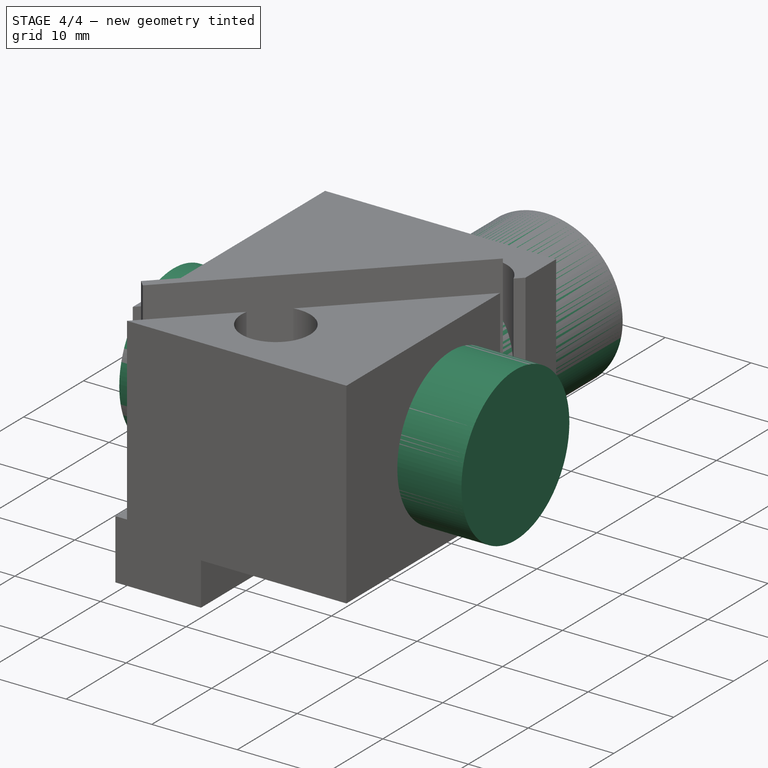
[diagram: stage 4 of 4 — iso view after this stage's code; geometry added in this stage tinted green]
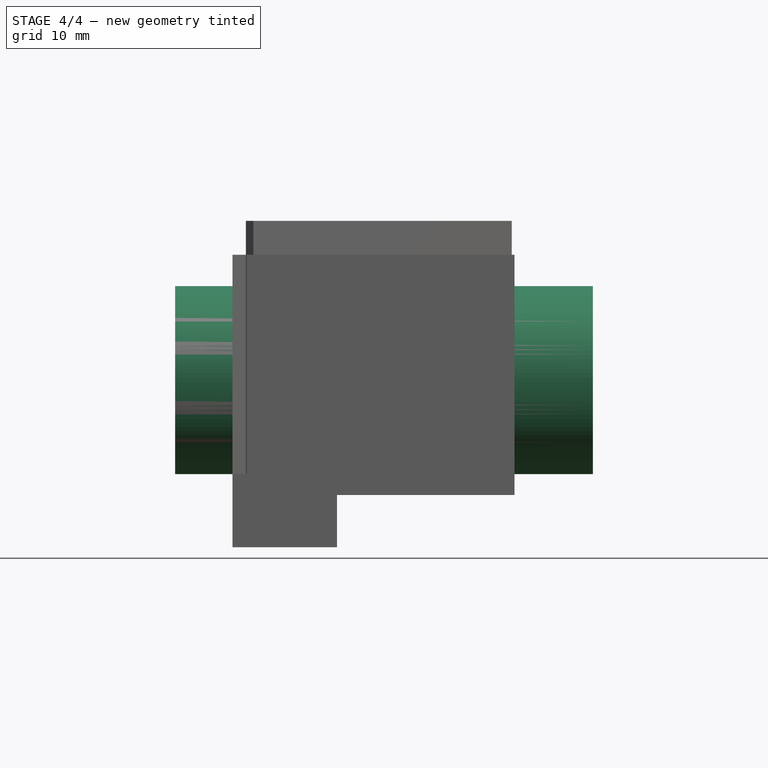
[diagram: stage 4 of 4 — front view after this stage's code; geometry added in this stage tinted green]
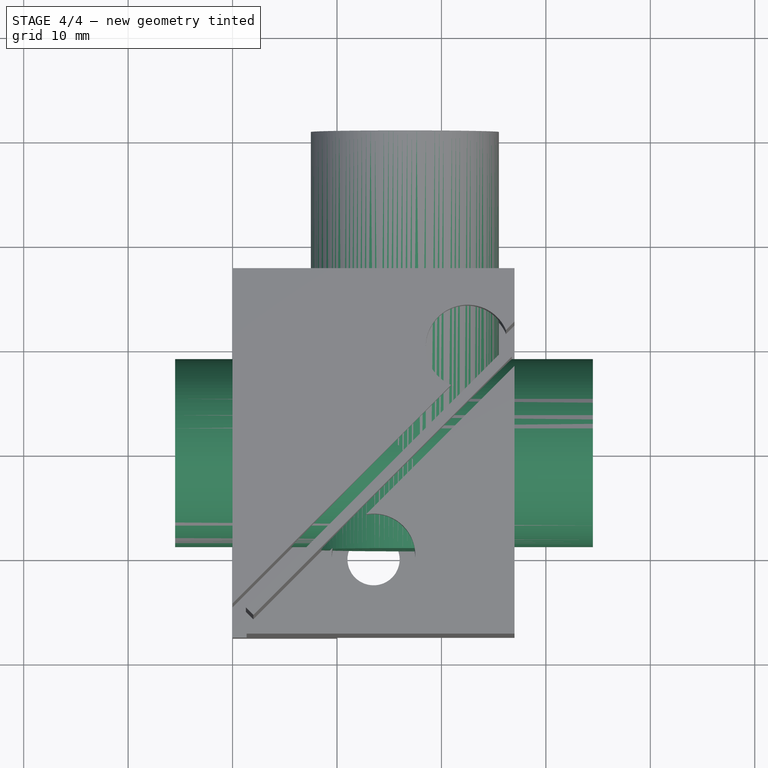
[diagram: stage 4 of 4 — top view after this stage's code; geometry added in this stage tinted green]
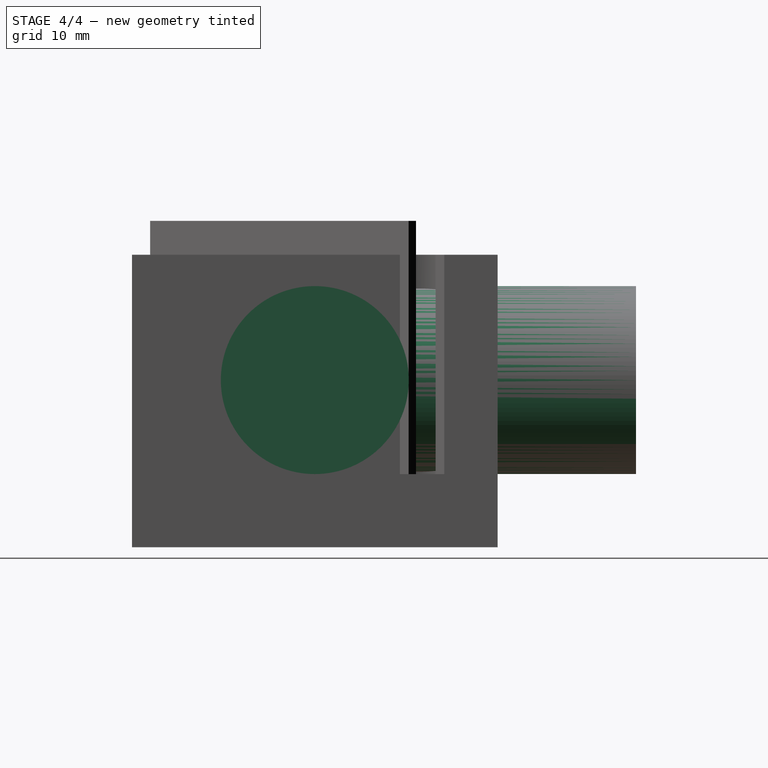
[diagram: stage 4 of 4 — right view after this stage's code; geometry added in this stage tinted green]
FEATURE [Part::Cylinder] Cylinder  label="light path1"
  Angle = 360
  AttacherType = Attacher::AttachEngine3D
  Height = 40
  Placement = pos=(-15.5,0,16) rot=(0,1,0;1.5708rad)
  Radius = 9
FEATURE [Part::Cylinder] Cylinder001  label="light path2"
  Angle = 360
  AttacherType = Attacher::AttachEngine3D
  Height = 40
  Placement = pos=(6.5,30.75,16) rot=(1,0,0;1.5708rad)
  Radius = 9
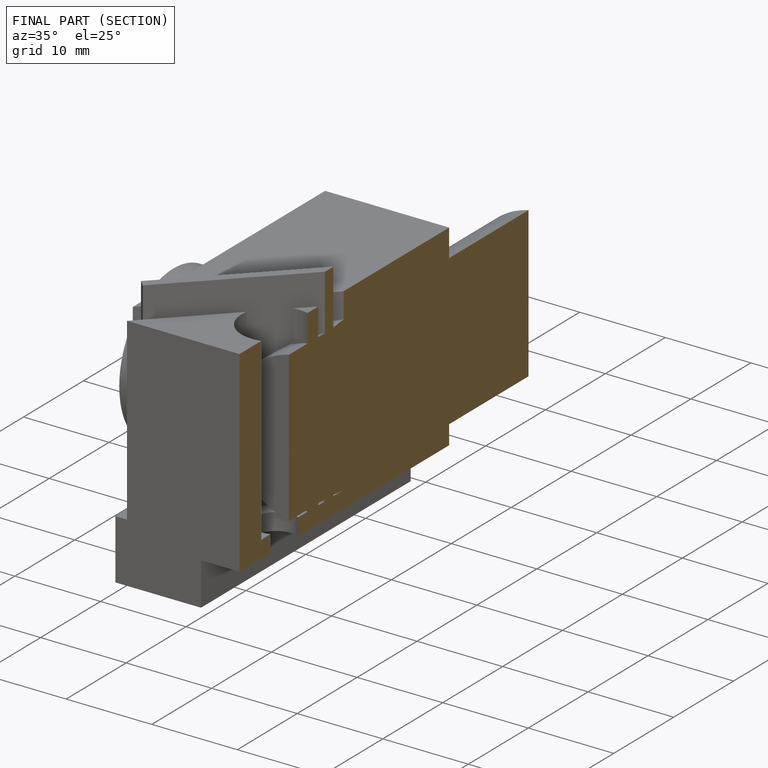
[diagram: finished part — half-section view (interior)]
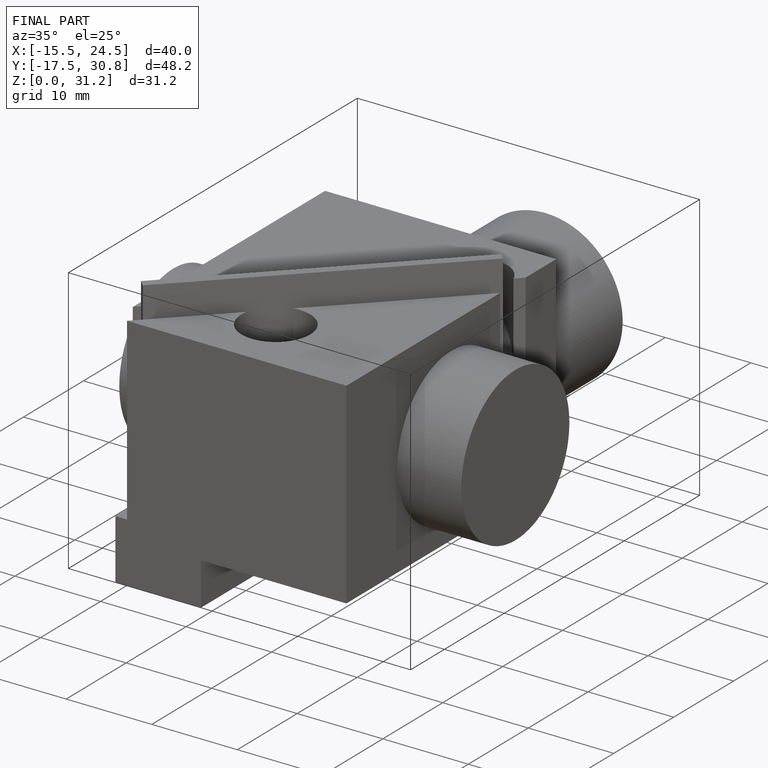
[diagram: finished part — iso view with bounding-box wireframe]
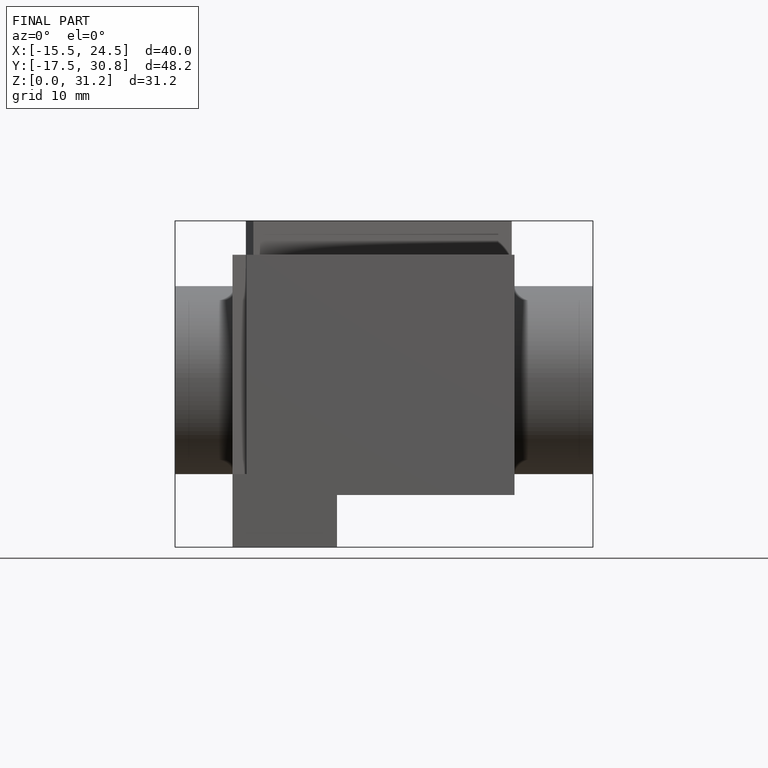
[diagram: finished part — front view with bounding-box wireframe]
